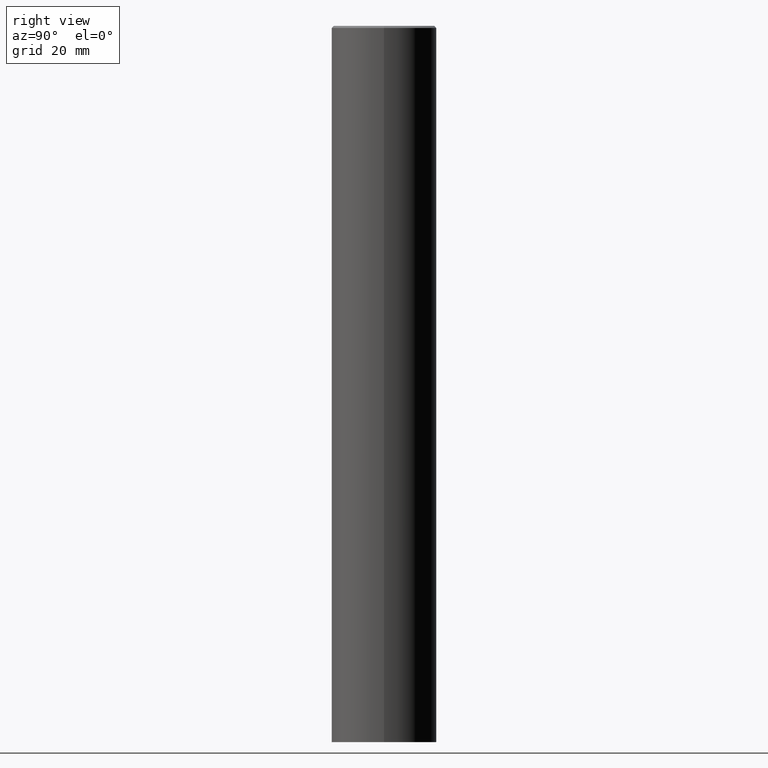
[diagram: clean part render]
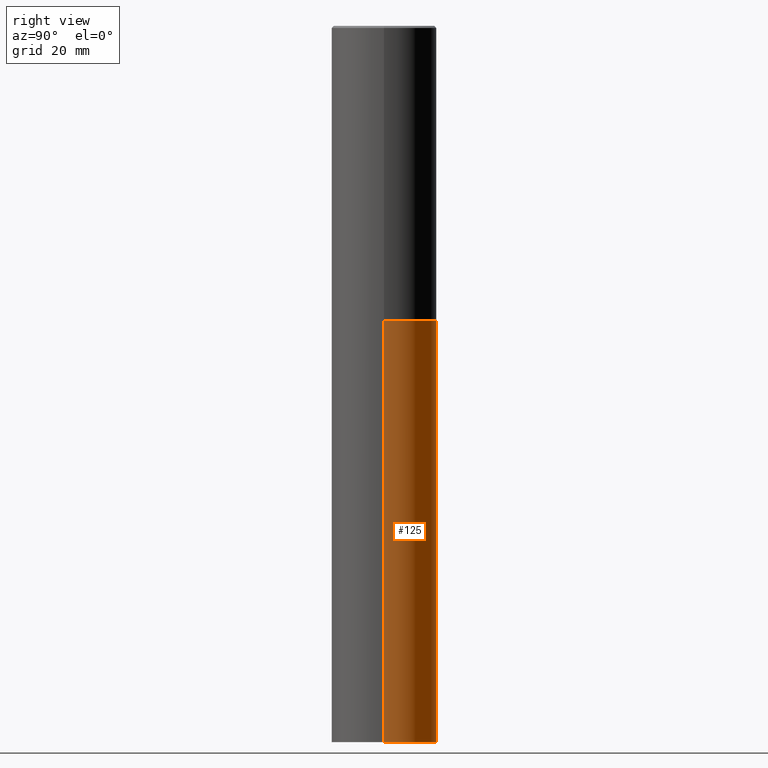
[diagram: same view with one face highlighted and labeled with its STEP entity id]
A machine part, right view. The second image highlights one B-rep face of the part: STEP entity #125.
In plain terms, the highlighted cylindrical surface (partial cylindrical patch) has radius 12.5006 mm, axis along (-0, 0, 1).
Its self-contained STEP definition (entity closure, byte-faithful):
#2 = LINE ( 'NONE', #257, #96 ) ;
#9 = CARTESIAN_POINT ( 'NONE',  ( 0.000000000000000000, 0.000000000000000000, 0.000000000000000000 ) ) ;
#10 = DIRECTION ( 'NONE',  ( 1.000000000000000000, -6.982962677686265922E-15, 4.876176775795935793E-29 ) ) ;
#11 = AXIS2_PLACEMENT_3D ( 'NONE', #209, #335, #327 ) ;
#21 = VERTEX_POINT ( 'NONE', #108 ) ;
#34 = CARTESIAN_POINT ( 'NONE',  ( 0.4921499999999999764, -3.436665081823295777E-15, 2.399810400207969603E-29 ) ) ;
#38 = CARTESIAN_POINT ( 'NONE',  ( -0.4921499999999999764, -1.299821836318722399E-14, -6.692899999999999849 ) ) ;
#44 = VERTEX_POINT ( 'NONE', #69 ) ;
#56 = DIRECTION ( 'NONE',  ( -2.445468806185136597E-29, 3.491481338843145583E-15, 1.000000000000000000 ) ) ;
#69 = CARTESIAN_POINT ( 'NONE',  ( -0.4921499999999999764, -1.299821836318722399E-14, -2.755900000000000016 ) ) ;
#76 = EDGE_LOOP ( 'NONE', ( #80, #290, #211, #307 ) ) ;
#80 = ORIENTED_EDGE ( 'NONE', *, *, #85, .T. ) ;
#83 = CARTESIAN_POINT ( 'NONE',  ( 0.4921499999999999764, -2.680480053456658516E-14, -6.692899999999999849 ) ) ;
#85 = EDGE_CURVE ( 'NONE', #194, #249, #308, .T. ) ;
#90 = AXIS2_PLACEMENT_3D ( 'NONE', #9, #346, #10 ) ;
#93 = LINE ( 'NONE', #34, #357 ) ;
#96 = VECTOR ( 'NONE', #287, 39.37007874015748143 ) ;
#107 = AXIS2_PLACEMENT_3D ( 'NONE', #284, #56, #110 ) ;
#108 = CARTESIAN_POINT ( 'NONE',  ( 0.4921499999999999764, -1.305883850354112017E-14, -2.755900000000000016 ) ) ;
#110 = DIRECTION ( 'NONE',  ( 1.000000000000000000, -6.982962677686265922E-15, 0.000000000000000000 ) ) ;
#125 = ADVANCED_FACE ( 'NONE', ( #320 ), #321, .T. ) ;
#139 = EDGE_CURVE ( 'NONE', #194, #21, #93, .T. ) ;
#146 = CIRCLE ( 'NONE', #107, 0.4921499999999999764 ) ;
#194 = VERTEX_POINT ( 'NONE', #83 ) ;
#209 = CARTESIAN_POINT ( 'NONE',  ( 1.636727817291649966E-28, -2.336813545274328780E-14, -6.692899999999999849 ) ) ;
#211 = ORIENTED_EDGE ( 'NONE', *, *, #291, .F. ) ;
#249 = VERTEX_POINT ( 'NONE', #38 ) ;
#257 = CARTESIAN_POINT ( 'NONE',  ( -0.4921499999999999764, 3.496936074043332897E-15, -2.420853904668951509E-29 ) ) ;
#284 = CARTESIAN_POINT ( 'NONE',  ( 6.739467482965618232E-29, -9.622173421717824390E-15, -2.755900000000000016 ) ) ;
#287 = DIRECTION ( 'NONE',  ( -2.445468806185136877E-29, 3.491481338843145188E-15, 1.000000000000000000 ) ) ;
#290 = ORIENTED_EDGE ( 'NONE', *, *, #352, .T. ) ;
#291 = EDGE_CURVE ( 'NONE', #21, #44, #146, .T. ) ;
#307 = ORIENTED_EDGE ( 'NONE', *, *, #139, .F. ) ;
#308 = CIRCLE ( 'NONE', #11, 0.4921499999999999764 ) ;
#316 = DIRECTION ( 'NONE',  ( -2.445468806185136877E-29, 3.491481338843145188E-15, 1.000000000000000000 ) ) ;
#320 = FACE_OUTER_BOUND ( 'NONE', #76, .T. ) ;
#321 = CYLINDRICAL_SURFACE ( 'NONE', #90, 0.4921499999999999764 ) ;
#327 = DIRECTION ( 'NONE',  ( 1.000000000000000000, -6.982962677686265922E-15, 0.000000000000000000 ) ) ;
#335 = DIRECTION ( 'NONE',  ( -2.445468806185136597E-29, 3.491481338843145583E-15, 1.000000000000000000 ) ) ;
#346 = DIRECTION ( 'NONE',  ( -2.445468806185136597E-29, 3.491481338843145583E-15, 1.000000000000000000 ) ) ;
#352 = EDGE_CURVE ( 'NONE', #249, #44, #2, .T. ) ;
#357 = VECTOR ( 'NONE', #316, 39.37007874015748143 ) ;